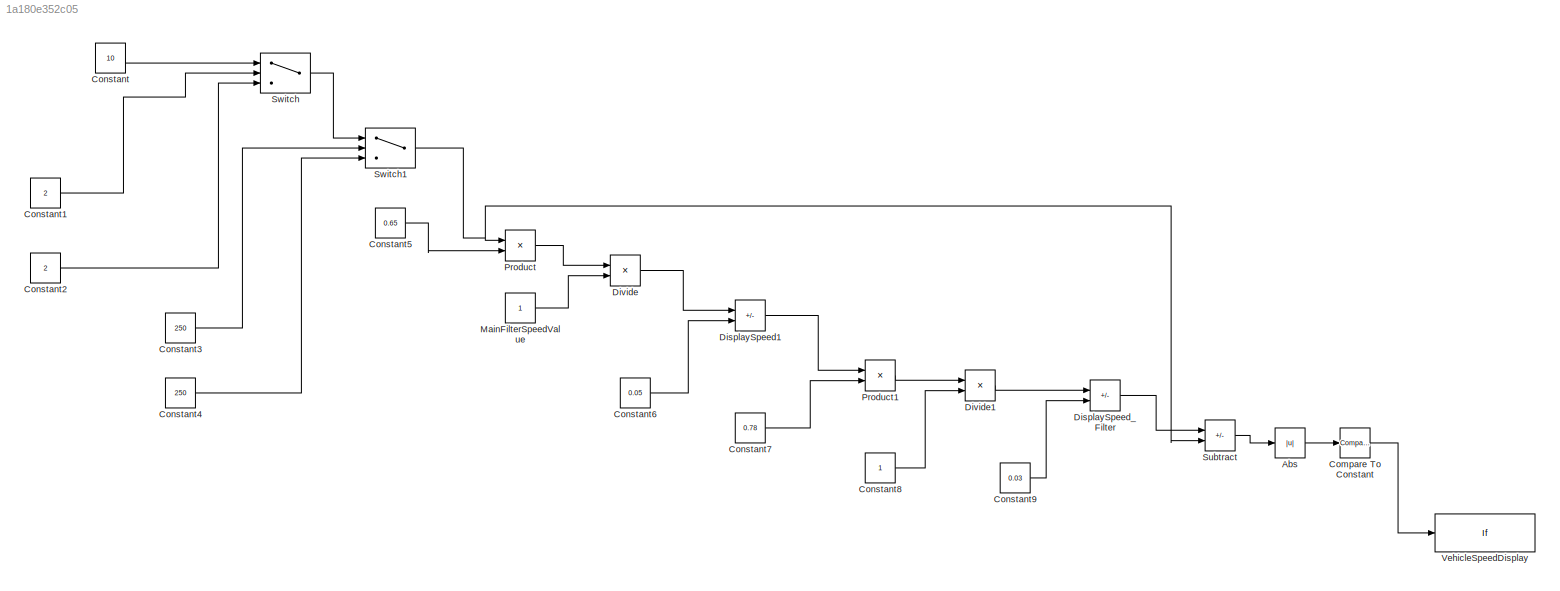
MODEL slx_1a180e352c05
KIND model
CONFIG AbsTol = auto
CONFIG EnableMultiTasking = off
CONFIG FixedStep = auto
CONFIG MaxStep = auto
CONFIG MinStep = auto
CONFIG RelTol = 1e-3
CONFIG SampleTimeConstraint = Unconstrained
CONFIG SolverName = VariableStepAuto
CONFIG StartTime = 0.0
CONFIG StopTime = 10.0
BLOCK [Abs] Abs
  SaturateOnIntegerOverflow = off
BLOCK [Reference] Compare To Constant  REF=simulink/Logic and Bit
Operations/Compare
To Constant
  SourceBlock = simulink/Logic and Bit\nOperations/Compare\nTo Constant
  SourceType = Compare To Constant
BLOCK [Constant] Constant
  Value = 10
BLOCK [Constant] Constant1
  Value = 2
BLOCK [Constant] Constant2
  Value = 2
BLOCK [Constant] Constant3
  Value = 250
BLOCK [Constant] Constant4
  Value = 250
BLOCK [Constant] Constant5
  Value = 0.65
BLOCK [Constant] Constant6
  Value = 0.05
BLOCK [Constant] Constant7
  Value = 0.78
BLOCK [Constant] Constant8
BLOCK [Constant] Constant9
  Value = 0.03
BLOCK [Sum] DisplaySpeed1
  IconShape = rectangular
  Inputs = +-
BLOCK [Sum] DisplaySpeed_Filter
  IconShape = rectangular
  Inputs = +-
BLOCK [Product] Divide
  Inputs = */
BLOCK [Product] Divide1
  Inputs = */
BLOCK [Constant] MainFilterSpeedValue
BLOCK [Product] Product
BLOCK [Product] Product1
BLOCK [Sum] Subtract
  IconShape = rectangular
  Inputs = +-
BLOCK [Switch] Switch
  Criteria = u2 > Threshold
  InputSameDT = off
  SaturateOnIntegerOverflow = off
BLOCK [Switch] Switch1
  Criteria = u2 > Threshold
  InputSameDT = off
  SaturateOnIntegerOverflow = off
  Threshold = 250
BLOCK [If] VehicleSpeedDisplay
LINE Abs:1 -> Compare To Constant:1
LINE Compare To Constant:1 -> VehicleSpeedDisplay:1
LINE Constant1:1 -> Switch:2
LINE Constant2:1 -> Switch:3
LINE Constant3:1 -> Switch1:2
LINE Constant4:1 -> Switch1:3
LINE Constant5:1 -> Product:2
LINE Constant6:1 -> DisplaySpeed1:2
LINE Constant7:1 -> Product1:2
LINE Constant8:1 -> Divide1:2
LINE Constant9:1 -> DisplaySpeed_Filter:2
LINE Constant:1 -> Switch:1
LINE DisplaySpeed1:1 -> Product1:1
LINE DisplaySpeed_Filter:1 -> Subtract:1
LINE Divide1:1 -> DisplaySpeed_Filter:1
LINE Divide:1 -> DisplaySpeed1:1
LINE MainFilterSpeedValue:1 -> Divide:2
LINE Product1:1 -> Divide1:1
LINE Product:1 -> Divide:1
LINE Subtract:1 -> Abs:1
NET Switch1:1 -> Product:1, Subtract:2
LINE Switch:1 -> Switch1:1
note: NET lines group one-source signal fan-out (src -> all destinations, sorted); 1:1 wires keep LINE
